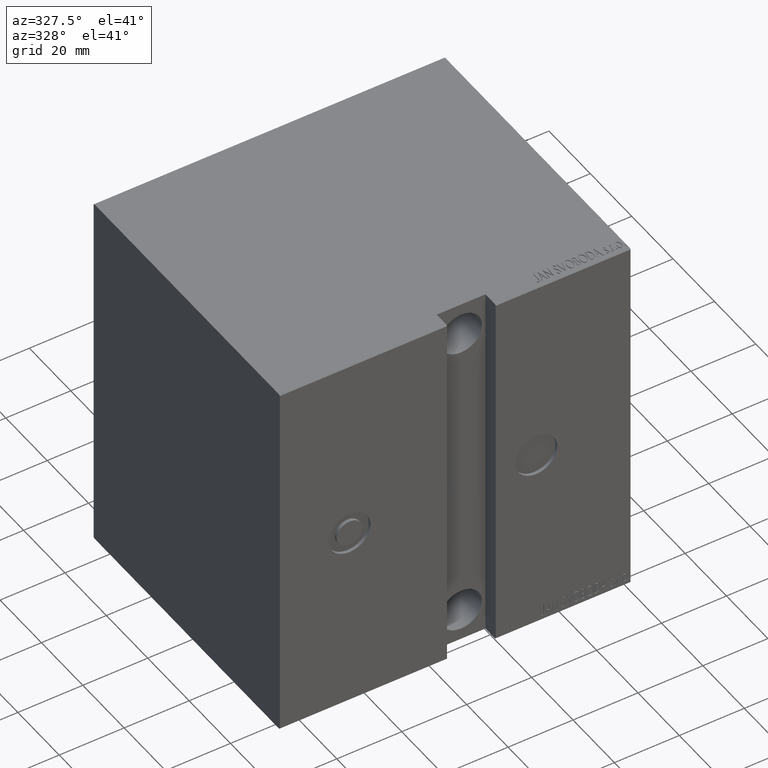
[diagram: clean part render]
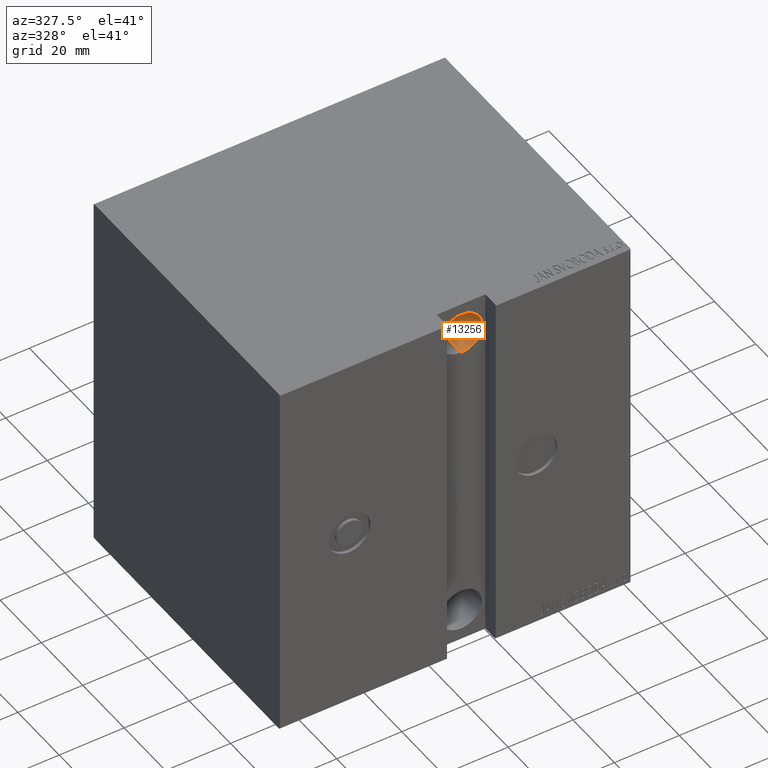
[diagram: same view with one face highlighted and labeled with its STEP entity id]
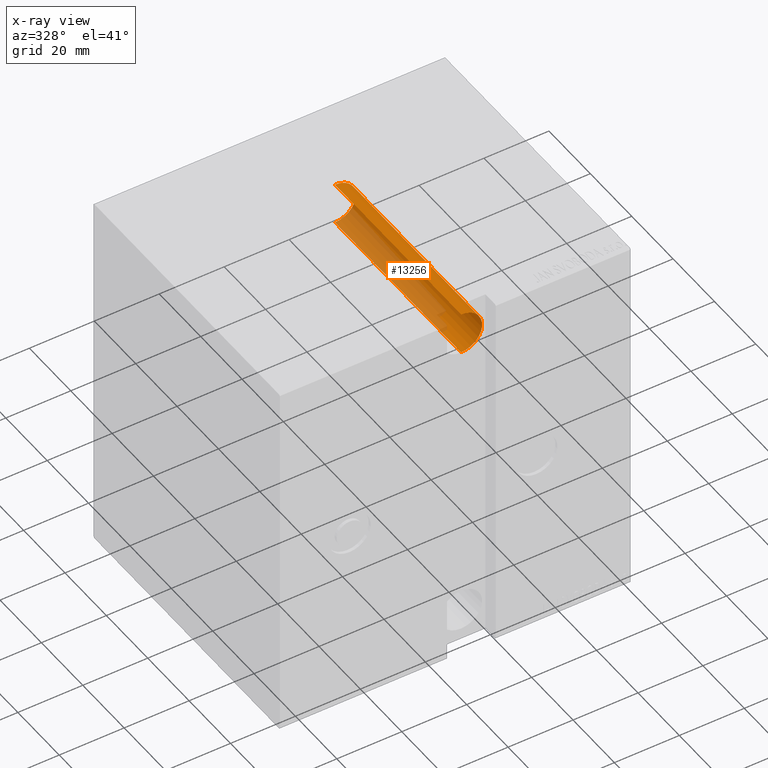
[diagram: x-ray of the same camera — body ghosted, the highlighted face saturated]
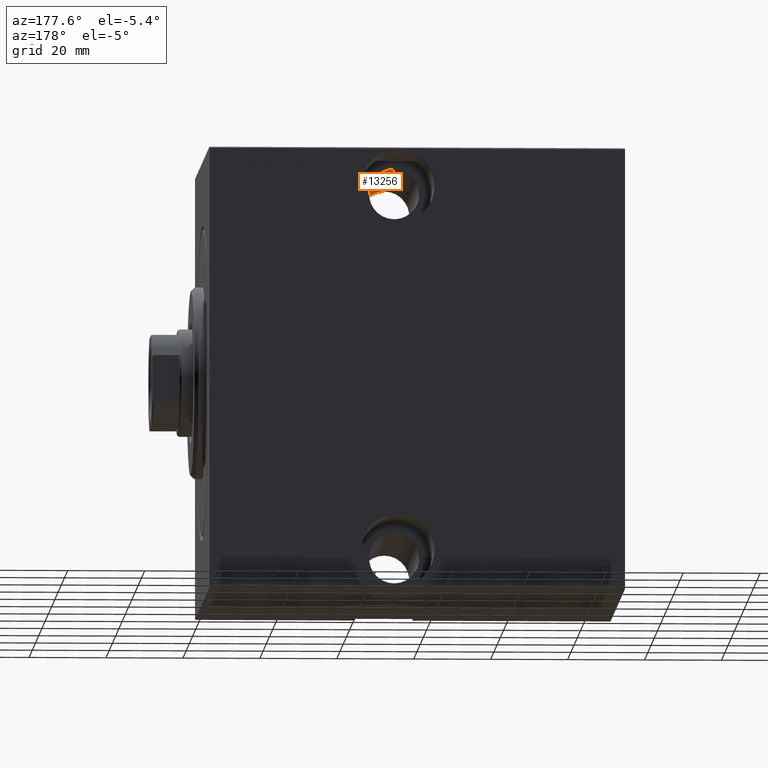
[diagram: same view with one face highlighted and labeled with its STEP entity id]
A machine part, auxiliary view. The second image highlights one B-rep face of the part: STEP entity #13256.
The next image is the same camera in x-ray: the body ghosted, the highlighted face saturated — about 42% of this face is hidden behind the body in this view.
A second angle (auxiliary view) of the same face is appended — the face is thin or edge-on in the first view.
In plain terms, the highlighted cylindrical surface (edge-blend (fillet) strip) has radius 6.5 mm, axis along (0, -1, 0).
Its self-contained STEP definition (entity closure, byte-faithful):
#174 = CARTESIAN_POINT ( 'NONE',  ( 49.00000000000002132, 40.00000000000001421, 54.00000000000000000 ) ) ;
#471 = ORIENTED_EDGE ( 'NONE', *, *, #31380, .F. ) ;
#568 = DIRECTION ( 'NONE',  ( 0.000000000000000000, -1.000000000000000000, 0.000000000000000000 ) ) ;
#691 = CARTESIAN_POINT ( 'NONE',  ( 49.00000000000002132, -20.99999999999998934, 54.00000000000000000 ) ) ;
#750 = VECTOR ( 'NONE', #32426, 1000.000000000000000 ) ;
#1356 = CYLINDRICAL_SURFACE ( 'NONE', #17701, 6.499999999999999112 ) ;
#2595 = DIRECTION ( 'NONE',  ( -0.000000000000000000, 1.000000000000000000, -0.000000000000000000 ) ) ;
#3122 = ORIENTED_EDGE ( 'NONE', *, *, #18840, .F. ) ;
#8241 = DIRECTION ( 'NONE',  ( -0.000000000000000000, 1.000000000000000000, -0.000000000000000000 ) ) ;
#9747 = VERTEX_POINT ( 'NONE', #174 ) ;
#9875 = VERTEX_POINT ( 'NONE', #36130 ) ;
#10323 = ORIENTED_EDGE ( 'NONE', *, *, #34316, .F. ) ;
#10887 = CARTESIAN_POINT ( 'NONE',  ( 49.00000000000002132, 40.00000000000001421, 47.50000000000000000 ) ) ;
#13212 = CARTESIAN_POINT ( 'NONE',  ( 49.00000000000002132, 40.00000000000001421, 41.00000000000000000 ) ) ;
#13256 = ADVANCED_FACE ( 'NONE', ( #40762 ), #1356, .F. ) ;
#17237 = EDGE_LOOP ( 'NONE', ( #10323, #23506, #471, #3122 ) ) ;
#17591 = VECTOR ( 'NONE', #2595, 1000.000000000000000 ) ;
#17701 = AXIS2_PLACEMENT_3D ( 'NONE', #20984, #8241, #20767 ) ;
#18840 = EDGE_CURVE ( 'NONE', #39122, #9747, #26084, .T. ) ;
#20767 = DIRECTION ( 'NONE',  ( 0.000000000000000000, 0.000000000000000000, 1.000000000000000000 ) ) ;
#20984 = CARTESIAN_POINT ( 'NONE',  ( 49.00000000000002132, -45.00000000000006395, 47.50000000000000000 ) ) ;
#23506 = ORIENTED_EDGE ( 'NONE', *, *, #28289, .T. ) ;
#23607 = AXIS2_PLACEMENT_3D ( 'NONE', #42341, #32417, #39106 ) ;
#24908 = CIRCLE ( 'NONE', #27652, 6.499999999999999112 ) ;
#26084 = LINE ( 'NONE', #39200, #17591 ) ;
#27652 = AXIS2_PLACEMENT_3D ( 'NONE', #10887, #568, #33276 ) ;
#28289 = EDGE_CURVE ( 'NONE', #9875, #28667, #41480, .T. ) ;
#28667 = VERTEX_POINT ( 'NONE', #13212 ) ;
#31380 = EDGE_CURVE ( 'NONE', #9747, #28667, #24908, .T. ) ;
#32417 = DIRECTION ( 'NONE',  ( -0.000000000000000000, 1.000000000000000000, -1.963837897332234442E-16 ) ) ;
#32426 = DIRECTION ( 'NONE',  ( -0.000000000000000000, 1.000000000000000000, -0.000000000000000000 ) ) ;
#33276 = DIRECTION ( 'NONE',  ( 0.000000000000000000, 0.000000000000000000, -1.000000000000000000 ) ) ;
#34316 = EDGE_CURVE ( 'NONE', #9875, #39122, #38693, .T. ) ;
#35661 = CARTESIAN_POINT ( 'NONE',  ( 49.00000000000002132, -45.00000000000006395, 41.00000000000000000 ) ) ;
#36130 = CARTESIAN_POINT ( 'NONE',  ( 49.00000000000002132, -20.99999999999998934, 41.00000000000000000 ) ) ;
#38693 = CIRCLE ( 'NONE', #23607, 6.499999999999999112 ) ;
#39106 = DIRECTION ( 'NONE',  ( 0.000000000000000000, 0.000000000000000000, -1.000000000000000000 ) ) ;
#39122 = VERTEX_POINT ( 'NONE', #691 ) ;
#39200 = CARTESIAN_POINT ( 'NONE',  ( 49.00000000000002132, -45.00000000000006395, 54.00000000000000000 ) ) ;
#40762 = FACE_OUTER_BOUND ( 'NONE', #17237, .T. ) ;
#41480 = LINE ( 'NONE', #35661, #750 ) ;
#42341 = CARTESIAN_POINT ( 'NONE',  ( 49.00000000000002132, -20.99999999999998934, 47.50000000000000000 ) ) ;